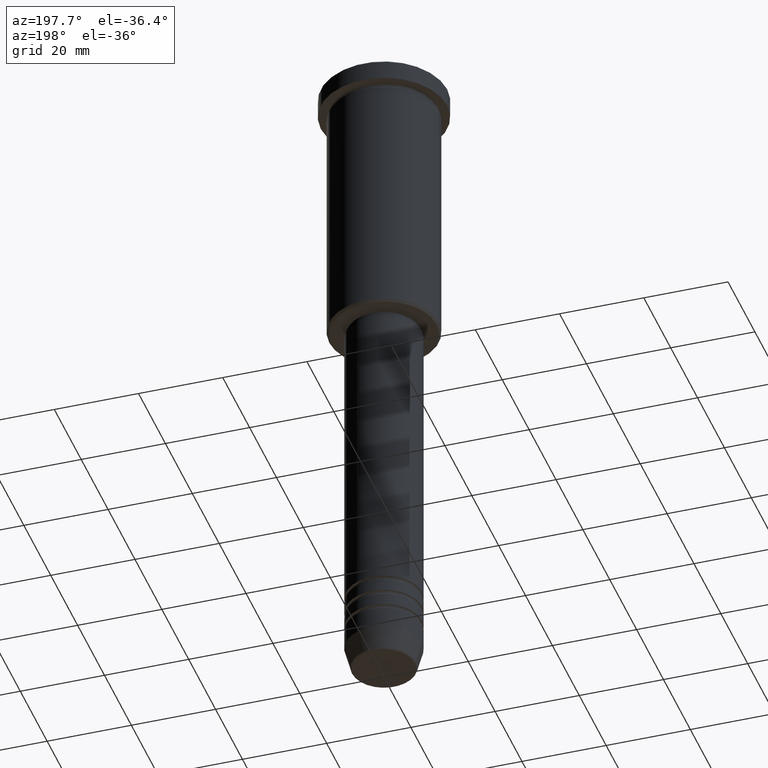
[diagram: clean part render]
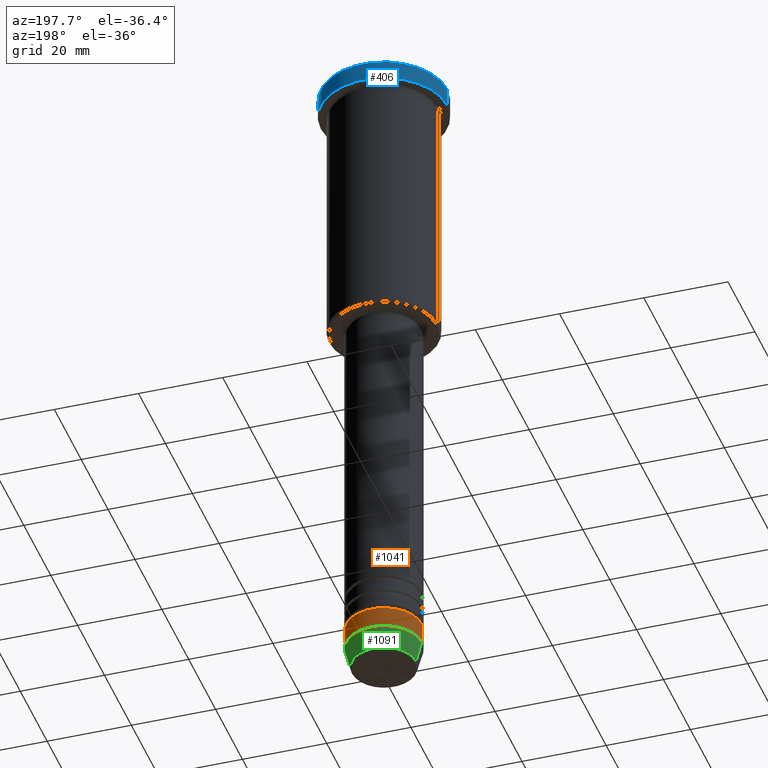
[diagram: same view with three faces highlighted in distinct colors, each labeled with its STEP entity id]
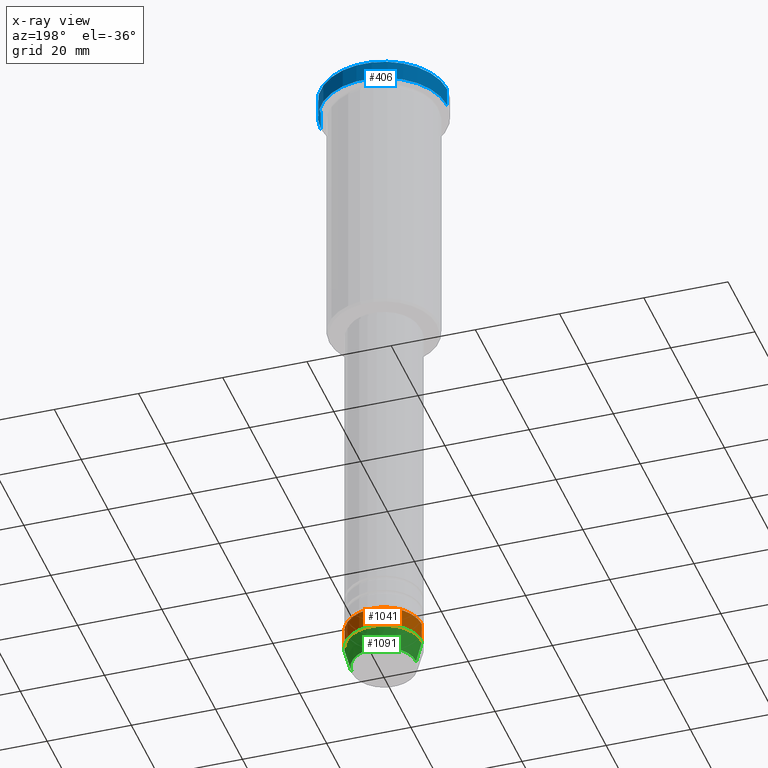
[diagram: x-ray of the same camera — body ghosted, the three highlighted faces saturated]
A machine part, auxiliary view with three faces highlighted in distinct colors.
The next image is the same camera in x-ray (body ghosted, the three faces saturated) — at least one of them is partly hidden behind the body in this view.
Their STEP definitions:

[orange] entity #1041 — the highlighted cylindrical surface (partial cylindrical patch) has radius 9 mm, axis along (-0, -0, 1).
#5 = DIRECTION ( 'NONE',  ( 1.000000000000000000, 0.000000000000000000, 0.000000000000000000 ) ) ;
#11 = VERTEX_POINT ( 'NONE', #1142 ) ;
#12 = EDGE_CURVE ( 'NONE', #106, #11, #344, .T. ) ;
#17 = LINE ( 'NONE', #777, #612 ) ;
#52 = AXIS2_PLACEMENT_3D ( 'NONE', #331, #1060, #616 ) ;
#106 = VERTEX_POINT ( 'NONE', #1150 ) ;
#114 = AXIS2_PLACEMENT_3D ( 'NONE', #378, #750, #661 ) ;
#159 = CARTESIAN_POINT ( 'NONE',  ( -9.000000000000000000, 1.102182119232617714E-15, -149.5000000000000000 ) ) ;
#160 = EDGE_CURVE ( 'NONE', #11, #482, #353, .T. ) ;
#168 = DIRECTION ( 'NONE',  ( -0.000000000000000000, -0.000000000000000000, 1.000000000000000000 ) ) ;
#173 = DIRECTION ( 'NONE',  ( -0.000000000000000000, -0.000000000000000000, 1.000000000000000000 ) ) ;
#211 = ORIENTED_EDGE ( 'NONE', *, *, #12, .T. ) ;
#212 = DIRECTION ( 'NONE',  ( -0.000000000000000000, -0.000000000000000000, 1.000000000000000000 ) ) ;
#287 = FACE_OUTER_BOUND ( 'NONE', #414, .T. ) ;
#331 = CARTESIAN_POINT ( 'NONE',  ( 0.000000000000000000, 0.000000000000000000, -154.5000000000000000 ) ) ;
#344 = CIRCLE ( 'NONE', #52, 9.000000000000001776 ) ;
#353 = LINE ( 'NONE', #543, #943 ) ;
#378 = CARTESIAN_POINT ( 'NONE',  ( 0.000000000000000000, 0.000000000000000000, -149.5000000000000000 ) ) ;
#414 = EDGE_LOOP ( 'NONE', ( #211, #905, #1045, #540 ) ) ;
#474 = CYLINDRICAL_SURFACE ( 'NONE', #773, 9.000000000000001776 ) ;
#482 = VERTEX_POINT ( 'NONE', #159 ) ;
#540 = ORIENTED_EDGE ( 'NONE', *, *, #853, .F. ) ;
#543 = CARTESIAN_POINT ( 'NONE',  ( -9.000000000000001776, 1.102182119232617911E-15, 0.000000000000000000 ) ) ;
#578 = VERTEX_POINT ( 'NONE', #875 ) ;
#612 = VECTOR ( 'NONE', #212, 1000.000000000000000 ) ;
#616 = DIRECTION ( 'NONE',  ( 1.000000000000000000, 0.000000000000000000, 0.000000000000000000 ) ) ;
#651 = CIRCLE ( 'NONE', #114, 9.000000000000000000 ) ;
#660 = CARTESIAN_POINT ( 'NONE',  ( 0.000000000000000000, 0.000000000000000000, 0.000000000000000000 ) ) ;
#661 = DIRECTION ( 'NONE',  ( 1.000000000000000000, 0.000000000000000000, 0.000000000000000000 ) ) ;
#705 = EDGE_CURVE ( 'NONE', #578, #482, #651, .T. ) ;
#750 = DIRECTION ( 'NONE',  ( -0.000000000000000000, -0.000000000000000000, 1.000000000000000000 ) ) ;
#773 = AXIS2_PLACEMENT_3D ( 'NONE', #660, #168, #5 ) ;
#777 = CARTESIAN_POINT ( 'NONE',  ( 9.000000000000001776, 0.000000000000000000, 0.000000000000000000 ) ) ;
#853 = EDGE_CURVE ( 'NONE', #106, #578, #17, .T. ) ;
#875 = CARTESIAN_POINT ( 'NONE',  ( 9.000000000000000000, 0.000000000000000000, -149.5000000000000000 ) ) ;
#905 = ORIENTED_EDGE ( 'NONE', *, *, #160, .T. ) ;
#943 = VECTOR ( 'NONE', #173, 1000.000000000000000 ) ;
#1041 = ADVANCED_FACE ( 'NONE', ( #287 ), #474, .T. ) ;
#1045 = ORIENTED_EDGE ( 'NONE', *, *, #705, .F. ) ;
#1060 = DIRECTION ( 'NONE',  ( -0.000000000000000000, -0.000000000000000000, 1.000000000000000000 ) ) ;
#1142 = CARTESIAN_POINT ( 'NONE',  ( -9.000000000000001776, 1.102182119232617911E-15, -154.5000000000000000 ) ) ;
#1150 = CARTESIAN_POINT ( 'NONE',  ( 9.000000000000001776, 0.000000000000000000, -154.5000000000000000 ) ) ;

[blue] entity #406 — the highlighted cylindrical surface (partial cylindrical patch) has radius 15 mm, axis along (-0, -0, 1).
#18 = EDGE_LOOP ( 'NONE', ( #688, #203, #1176, #495 ) ) ;
#41 = EDGE_CURVE ( 'NONE', #1083, #263, #109, .T. ) ;
#45 = LINE ( 'NONE', #415, #727 ) ;
#88 = VERTEX_POINT ( 'NONE', #958 ) ;
#109 = CIRCLE ( 'NONE', #214, 15.00000000000000000 ) ;
#111 = LINE ( 'NONE', #602, #908 ) ;
#139 = EDGE_CURVE ( 'NONE', #88, #1156, #384, .T. ) ;
#144 = DIRECTION ( 'NONE',  ( 0.000000000000000000, 0.000000000000000000, -1.000000000000000000 ) ) ;
#158 = DIRECTION ( 'NONE',  ( -0.000000000000000000, -0.000000000000000000, 1.000000000000000000 ) ) ;
#201 = CARTESIAN_POINT ( 'NONE',  ( 0.000000000000000000, 0.000000000000000000, 0.000000000000000000 ) ) ;
#203 = ORIENTED_EDGE ( 'NONE', *, *, #746, .T. ) ;
#204 = CARTESIAN_POINT ( 'NONE',  ( -15.00000000000000000, 1.836970198721029589E-15, -4.999999999999999112 ) ) ;
#214 = AXIS2_PLACEMENT_3D ( 'NONE', #626, #144, #517 ) ;
#263 = VERTEX_POINT ( 'NONE', #1166 ) ;
#324 = DIRECTION ( 'NONE',  ( 1.000000000000000000, 0.000000000000000000, 0.000000000000000000 ) ) ;
#384 = CIRCLE ( 'NONE', #546, 15.00000000000000000 ) ;
#406 = ADVANCED_FACE ( 'NONE', ( #476 ), #413, .T. ) ;
#413 = CYLINDRICAL_SURFACE ( 'NONE', #749, 15.00000000000000000 ) ;
#415 = CARTESIAN_POINT ( 'NONE',  ( 15.00000000000000000, 0.000000000000000000, 0.000000000000000000 ) ) ;
#470 = CARTESIAN_POINT ( 'NONE',  ( 0.000000000000000000, 0.000000000000000000, -4.999999999999999112 ) ) ;
#476 = FACE_OUTER_BOUND ( 'NONE', #18, .T. ) ;
#495 = ORIENTED_EDGE ( 'NONE', *, *, #988, .F. ) ;
#517 = DIRECTION ( 'NONE',  ( 1.000000000000000000, 0.000000000000000000, 0.000000000000000000 ) ) ;
#546 = AXIS2_PLACEMENT_3D ( 'NONE', #470, #987, #1179 ) ;
#602 = CARTESIAN_POINT ( 'NONE',  ( -15.00000000000000000, 1.836970198721029589E-15, 0.000000000000000000 ) ) ;
#626 = CARTESIAN_POINT ( 'NONE',  ( 0.000000000000000000, 0.000000000000000000, -0.5000000000000108802 ) ) ;
#688 = ORIENTED_EDGE ( 'NONE', *, *, #139, .T. ) ;
#727 = VECTOR ( 'NONE', #158, 1000.000000000000000 ) ;
#746 = EDGE_CURVE ( 'NONE', #1156, #1083, #111, .T. ) ;
#749 = AXIS2_PLACEMENT_3D ( 'NONE', #201, #799, #324 ) ;
#799 = DIRECTION ( 'NONE',  ( -0.000000000000000000, -0.000000000000000000, 1.000000000000000000 ) ) ;
#908 = VECTOR ( 'NONE', #949, 1000.000000000000000 ) ;
#949 = DIRECTION ( 'NONE',  ( -0.000000000000000000, -0.000000000000000000, 1.000000000000000000 ) ) ;
#958 = CARTESIAN_POINT ( 'NONE',  ( 15.00000000000000000, 0.000000000000000000, -4.999999999999999112 ) ) ;
#987 = DIRECTION ( 'NONE',  ( -0.000000000000000000, -0.000000000000000000, 1.000000000000000000 ) ) ;
#988 = EDGE_CURVE ( 'NONE', #88, #263, #45, .T. ) ;
#1010 = CARTESIAN_POINT ( 'NONE',  ( -15.00000000000000000, 1.836970198721029589E-15, -0.5000000000000108802 ) ) ;
#1083 = VERTEX_POINT ( 'NONE', #1010 ) ;
#1156 = VERTEX_POINT ( 'NONE', #204 ) ;
#1166 = CARTESIAN_POINT ( 'NONE',  ( 15.00000000000000000, 0.000000000000000000, -0.5000000000000108802 ) ) ;
#1176 = ORIENTED_EDGE ( 'NONE', *, *, #41, .T. ) ;
#1179 = DIRECTION ( 'NONE',  ( 1.000000000000000000, 0.000000000000000000, 0.000000000000000000 ) ) ;

[green] entity #1091 — the highlighted conical surface has half-angle 15 deg.
#9 = DIRECTION ( 'NONE',  ( -0.000000000000000000, -0.000000000000000000, 1.000000000000000000 ) ) ;
#11 = VERTEX_POINT ( 'NONE', #1142 ) ;
#12 = EDGE_CURVE ( 'NONE', #106, #11, #344, .T. ) ;
#43 = CARTESIAN_POINT ( 'NONE',  ( -7.625578860783873481, 1.018023096791543504E-15, -159.6294095225512422 ) ) ;
#52 = AXIS2_PLACEMENT_3D ( 'NONE', #331, #1060, #616 ) ;
#70 = EDGE_CURVE ( 'NONE', #576, #402, #444, .T. ) ;
#106 = VERTEX_POINT ( 'NONE', #1150 ) ;
#176 = CARTESIAN_POINT ( 'NONE',  ( 9.000000000000001776, 0.000000000000000000, -154.5000000000000000 ) ) ;
#270 = AXIS2_PLACEMENT_3D ( 'NONE', #978, #337, #1064 ) ;
#326 = ORIENTED_EDGE ( 'NONE', *, *, #12, .F. ) ;
#331 = CARTESIAN_POINT ( 'NONE',  ( 0.000000000000000000, 0.000000000000000000, -154.5000000000000000 ) ) ;
#337 = DIRECTION ( 'NONE',  ( -0.000000000000000000, -0.000000000000000000, 1.000000000000000000 ) ) ;
#344 = CIRCLE ( 'NONE', #52, 9.000000000000001776 ) ;
#375 = DIRECTION ( 'NONE',  ( 0.2588190451025226824, 0.000000000000000000, 0.9659258262890676461 ) ) ;
#388 = CONICAL_SURFACE ( 'NONE', #408, 9.000000000000001776, 0.2617993877991514062 ) ;
#402 = VERTEX_POINT ( 'NONE', #43 ) ;
#408 = AXIS2_PLACEMENT_3D ( 'NONE', #993, #9, #735 ) ;
#444 = CIRCLE ( 'NONE', #270, 7.625578860783872592 ) ;
#472 = EDGE_CURVE ( 'NONE', #402, #11, #986, .T. ) ;
#576 = VERTEX_POINT ( 'NONE', #1072 ) ;
#609 = EDGE_LOOP ( 'NONE', ( #1039, #718, #326, #913 ) ) ;
#616 = DIRECTION ( 'NONE',  ( 1.000000000000000000, 0.000000000000000000, 0.000000000000000000 ) ) ;
#718 = ORIENTED_EDGE ( 'NONE', *, *, #472, .T. ) ;
#735 = DIRECTION ( 'NONE',  ( 1.000000000000000000, 0.000000000000000000, 0.000000000000000000 ) ) ;
#741 = FACE_OUTER_BOUND ( 'NONE', #609, .T. ) ;
#802 = LINE ( 'NONE', #176, #1033 ) ;
#893 = CARTESIAN_POINT ( 'NONE',  ( -9.000000000000001776, 1.102182119232617911E-15, -154.5000000000000000 ) ) ;
#913 = ORIENTED_EDGE ( 'NONE', *, *, #1024, .F. ) ;
#975 = DIRECTION ( 'NONE',  ( -0.2588190451025226824, 3.169619151431787744E-17, 0.9659258262890676461 ) ) ;
#978 = CARTESIAN_POINT ( 'NONE',  ( 0.000000000000000000, 0.000000000000000000, -159.6294095225512422 ) ) ;
#986 = LINE ( 'NONE', #893, #1012 ) ;
#993 = CARTESIAN_POINT ( 'NONE',  ( 0.000000000000000000, 0.000000000000000000, -154.5000000000000000 ) ) ;
#1012 = VECTOR ( 'NONE', #975, 1000.000000000000114 ) ;
#1024 = EDGE_CURVE ( 'NONE', #576, #106, #802, .T. ) ;
#1033 = VECTOR ( 'NONE', #375, 1000.000000000000114 ) ;
#1039 = ORIENTED_EDGE ( 'NONE', *, *, #70, .T. ) ;
#1060 = DIRECTION ( 'NONE',  ( -0.000000000000000000, -0.000000000000000000, 1.000000000000000000 ) ) ;
#1064 = DIRECTION ( 'NONE',  ( 1.000000000000000000, 0.000000000000000000, 0.000000000000000000 ) ) ;
#1072 = CARTESIAN_POINT ( 'NONE',  ( 7.625578860783872592, 0.000000000000000000, -159.6294095225512422 ) ) ;
#1091 = ADVANCED_FACE ( 'NONE', ( #741 ), #388, .T. ) ;
#1142 = CARTESIAN_POINT ( 'NONE',  ( -9.000000000000001776, 1.102182119232617911E-15, -154.5000000000000000 ) ) ;
#1150 = CARTESIAN_POINT ( 'NONE',  ( 9.000000000000001776, 0.000000000000000000, -154.5000000000000000 ) ) ;